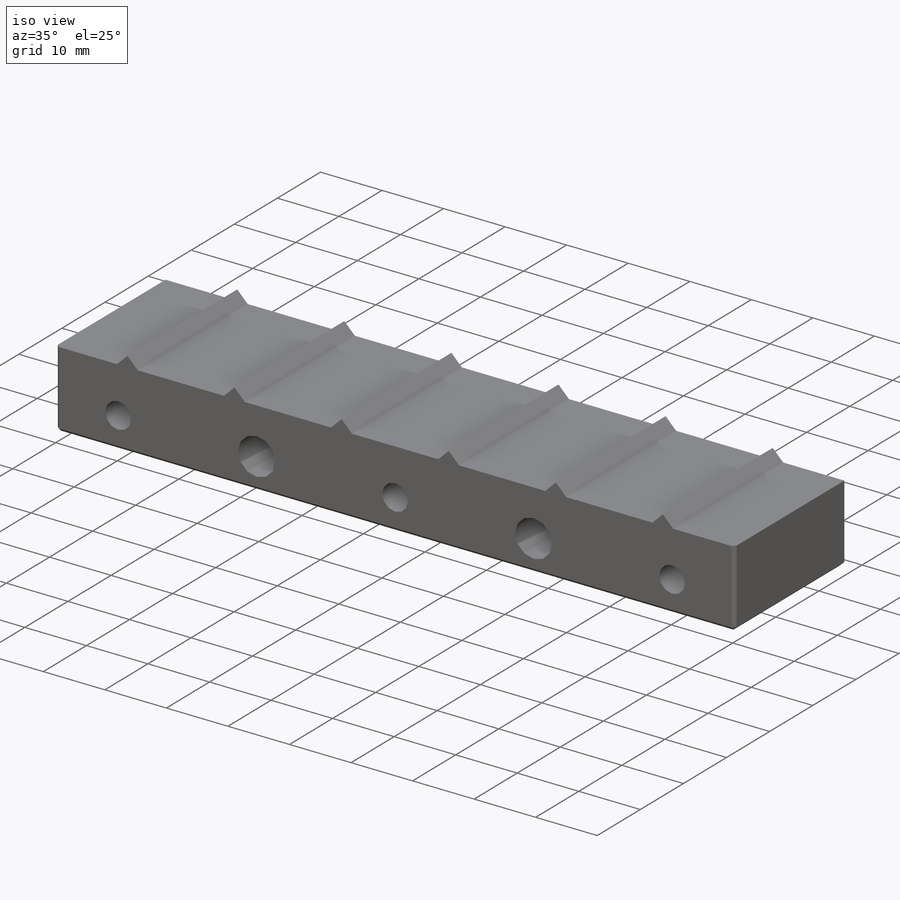
[diagram: iso view]
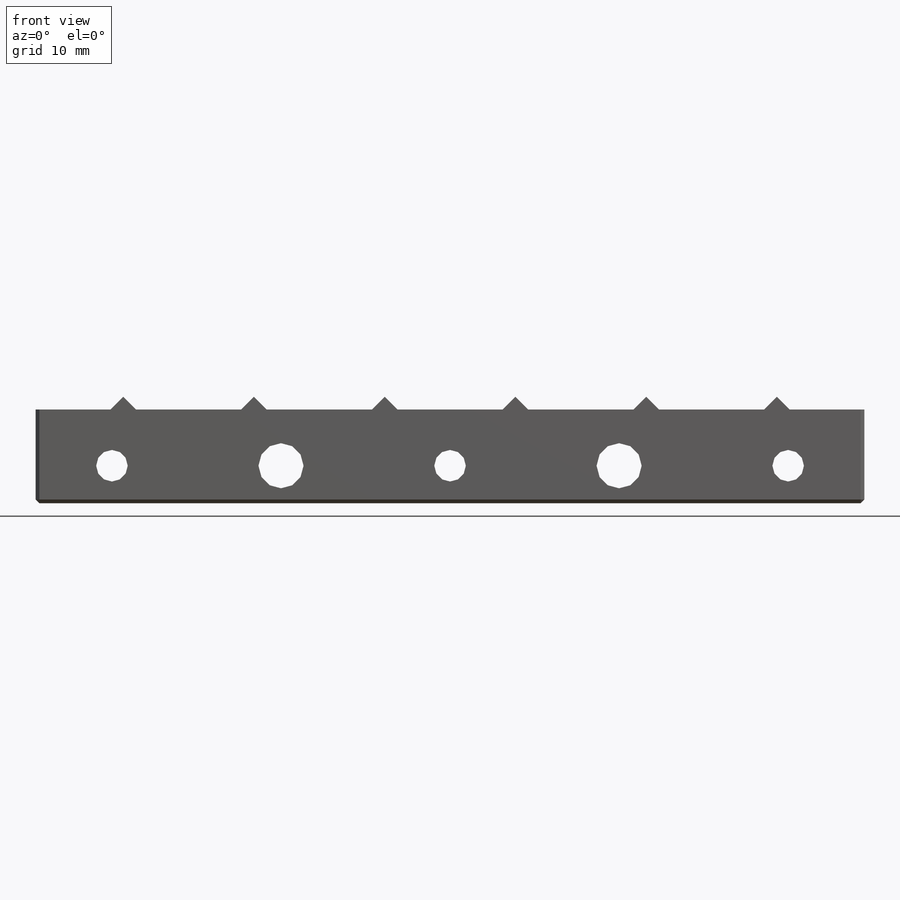
[diagram: front view]
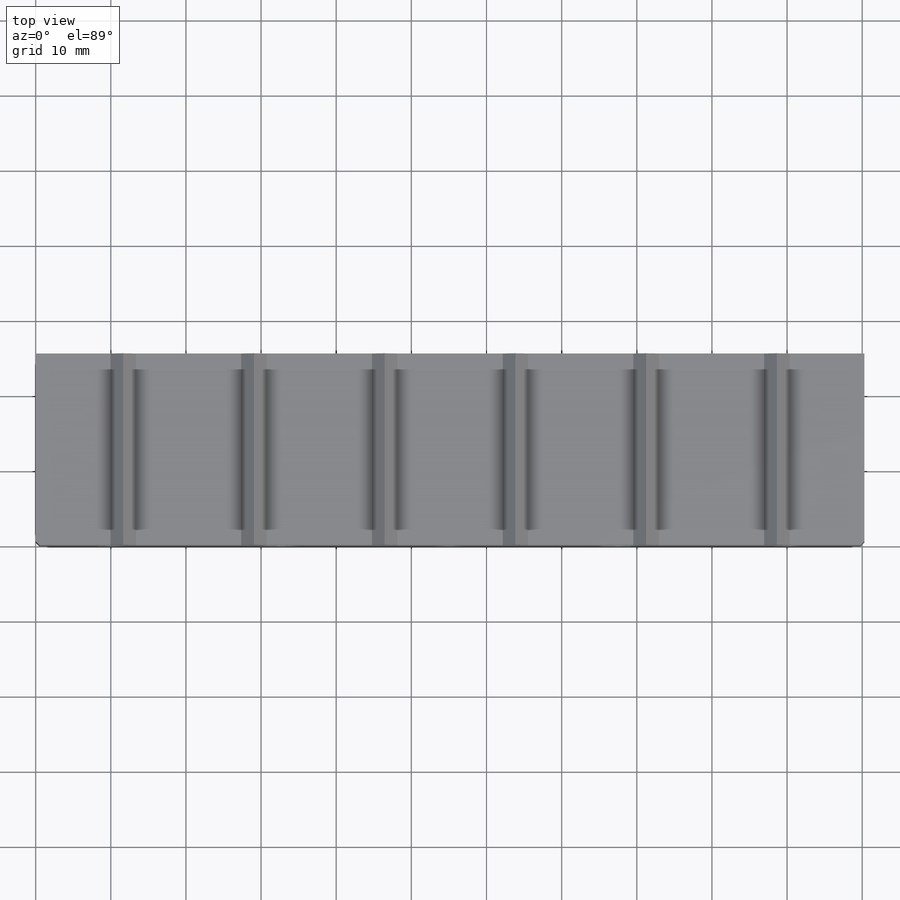
[diagram: top view]
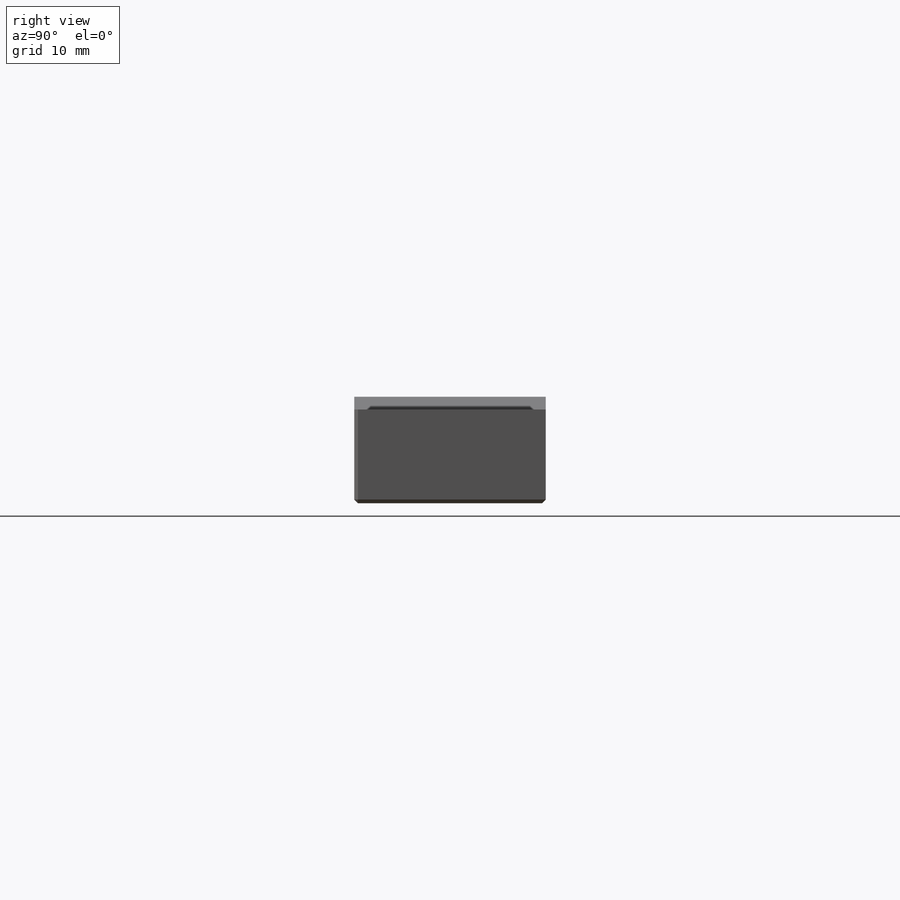
[diagram: right view]
SOLIDWORKS PART (.sldprt)
format: sldprt  version: not decoded by parser v0  size: 444,416 bytes
history: native  units: mm
features: sketch x5, plane x3, thread x3, hole x2, material x1, extrude x1, chamfer x1 (+10 scaffold rows collapsed)
feature tree (26):
  scaffold x10  (default folders/planes/origin — collapsed)
  material  "Материал <не указан>"
  plane  "Спереди"
  plane  "Сверху"
  plane  "Справа"
  sketch  "Эскиз1"  dims[c1.D1=170.0mm c1.D2=13.0mm c1.D3=29.85mm c1.D4=13.0mm c1.D5=10.0mm c1.D6=14.0mm c1.D7=14.0mm c1.D8=17.4mm c1.D9=52.2mm c1.D10=87.0mm c1.D11=170.0mm c2.D2=11.65mm c2.D3=28.75mm c2.D4=46.15mm c2.D5=63.55mm c2.D6=80.95mm c2.D7=98.65mm c2.D1=10.0mm c2.D8=11.7mm c2.D9=3.4mm c3.D2=17.4mm c3.D3=52.2mm c3.D4=87.0mm c3.D5=11.65mm c4.D2=17.4mm c4.D3=52.2mm c4.D4=~17.009317mm c4.D1=1.7mm c5.D2=~111.688714mm c6.D2=90.0deg c7.D2=110.3mm c7.D3=17.4mm c7.D4=52.2mm c7.D5=87.0mm c7.D1=110.3mm c8.D1=90.0deg c9.D1=110.3mm c9.D2=12.5mm c9.D3=110.285mm c9.D4=17.4mm c9.D5=~14.197199mm c9.D6=~1.697199mm c10.D6=90.0deg c10.D7=~9.954238mm c10.D8=~2.400202mm c10.D9=~2.400202mm c11.D8=~13.348636mm c11.D4=~11.651437mm c12.D8=~13.348636mm c12.D4=52.2mm c13.D8=~13.348636mm c13.D4=17.4mm c13.D9=52.2mm c13.D10=87.0mm c13.D11=~1.697199mm c14.D11=90.0deg c15.D11=~9.954238mm c15.D7=~9.954238mm c15.D1=~1.575736mm c16.D1=90.0deg c16.D4=~1.693787mm c16.D5=4.99mm c16.D2=17.715mm c16.D6=~1.693787mm c17.D6=90.0deg c18.D6=~2.395376mm c18.D7=~14.012426mm c18.D8=17.4mm c18.D9=~9.956213mm c18.D10=~9.941213mm c18.D3=~9.941213mm c19.D6=~3.387574mm c19.D10=110.285mm c19.D11=17.4mm c19.D12=17.4mm c19.D13=17.4mm c19.D14=17.4mm c19.D2=~1.693787mm c20.D2=90.0deg c20.D3=~1.693787mm c20.D4=~1.693787mm c21.D4=90.0deg c22.D4=~9.956213mm c22.D6=~9.941213mm c22.D7=17.4mm c22.D8=22.5mm c22.D9=45.0mm c22.D11=45.0mm c22.D12=90.0mm c22.D13=7.485mm c22.D14=~14.012426mm c23.D13=12.475mm c23.D6=~9.941213mm c23.D11=45.0mm c23.D8=10.15mm c23.D9=32.65mm c24.D11=55.15mm c24.D14=77.65mm c24.D15=100.15mm c24.D8=45.0mm c24.D9=7.485mm]
  extrude  "Бобышка-Вытянуть1"  Depth=25.5mm
  hole  "Отверстие обработанное метчиком M5x0.81"  [1 undecoded]
  sketch  "Эскиз3"  dims[c1.D1=~47.287128mm c1.D2=~41.807478mm c2.D1=~55.151437mm c2.D2=12.5mm c3.D1=90.0mm c3.D2=~55.151437mm c3.D3=~10.151437mm c3.D4=~32.651437mm c3.D5=~55.151437mm c3.D6=~77.651437mm c3.D7=~100.151437mm c3.D8=5.0mm c4.D2=7.5mm c4.D3=22.5mm c4.D4=22.5mm c4.D5=22.5mm c4.D6=~41.020755mm c5.D3=22.5mm c5.D2=7.5mm]
  sketch  "Эскиз5"  dims[hole-wizard template sketch: 59 standard entries collapsed; hole parameters kept: c18.Диаметр проходного сверла=4.2mm c18.Глубина проходного сверла=25.5mm]
  thread  "Отверстие резьбы1"  Diameter=5mm  [1 undecoded]
  thread  "Отверстие резьбы3"  Diameter=5mm  [1 undecoded]
  thread  "Отверстие резьбы4"  Diameter=5mm  [1 undecoded]
  hole  "Отверстия под штифты Ø6.0 мм1"  [1 undecoded]
  sketch  "Эскиз6"  dims[D1=7.5mm D2=22.5mm D3=~53.557163mm]
  sketch  "Эскиз7"  dims[hole-wizard template sketch: 59 standard entries collapsed; hole parameters kept: c18.Диаметр сквозного отверстия=6.0mm c18.Глубина сквозного отверстия=25.5mm]
  chamfer  "Фаска1"  Distance=0.5mm Angle=45deg
decode coverage: 10 of 12 modeling features carry decoded parameters
note: ~ marks probable driven/reference dimensions
note: 5 parameter values undecoded
note: suppression state not decoded; provenance and decode notes live in map.json
